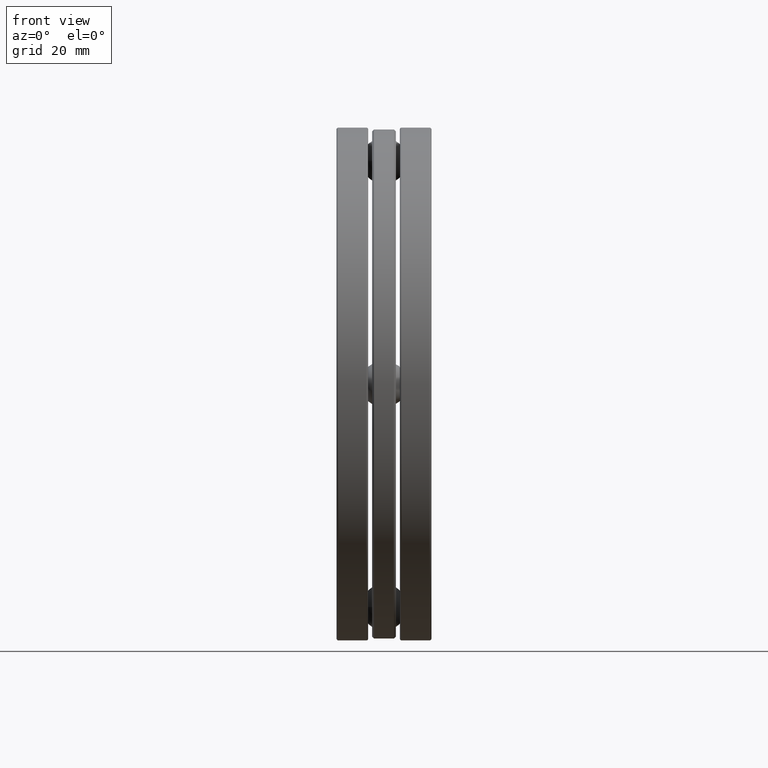
[diagram: clean part render]
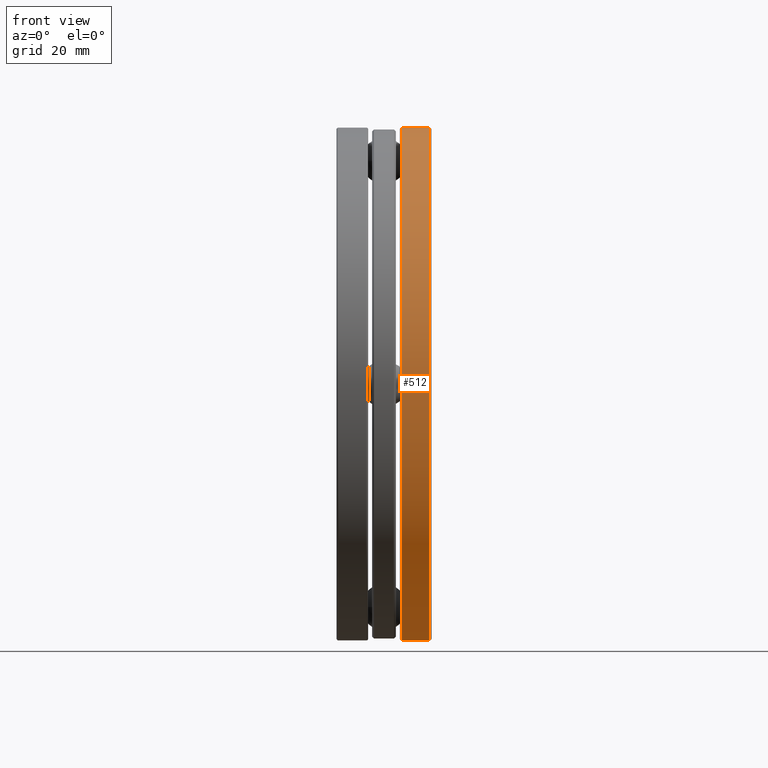
[diagram: same view with one face highlighted and labeled with its STEP entity id]
A machine part, front view. The second image highlights one B-rep face of the part: STEP entity #512.
In plain terms, the highlighted cylindrical surface (bore or boss wall) has radius 67.5005 mm, axis along (-1, -0, -0).
Its self-contained STEP definition (entity closure, byte-faithful):
#13 = DIRECTION ( 'NONE',  ( -1.000000000000000000, -0.0000000000000000000, -0.0000000000000000000 ) ) ;
#21 = FACE_OUTER_BOUND ( 'NONE', #704, .T. ) ;
#32 = EDGE_CURVE ( 'NONE', #455, #455, #544, .T. ) ;
#36 = DIRECTION ( 'NONE',  ( -1.000000000000000000, -0.0000000000000000000, -0.0000000000000000000 ) ) ;
#44 = CARTESIAN_POINT ( 'NONE',  ( 0.0000000000000000000, 0.0000000000000000000, 0.0000000000000000000 ) ) ;
#54 = EDGE_CURVE ( 'NONE', #539, #539, #114, .T. ) ;
#104 = CARTESIAN_POINT ( 'NONE',  ( 0.1840032800000006300, 0.0000000000000000000, 0.0000000000000000000 ) ) ;
#114 = CIRCLE ( 'NONE', #398, 2.657500000000000600 ) ;
#314 = AXIS2_PLACEMENT_3D ( 'NONE', #104, #36, #746 ) ;
#341 = CARTESIAN_POINT ( 'NONE',  ( 0.4720000000000008100, 0.0000000000000000000, 0.0000000000000000000 ) ) ;
#385 = CYLINDRICAL_SURFACE ( 'NONE', #780, 2.657500000000000600 ) ;
#398 = AXIS2_PLACEMENT_3D ( 'NONE', #341, #13, #553 ) ;
#455 = VERTEX_POINT ( 'NONE', #775 ) ;
#458 = EDGE_LOOP ( 'NONE', ( #600 ) ) ;
#482 = ORIENTED_EDGE ( 'NONE', *, *, #54, .T. ) ;
#512 = ADVANCED_FACE ( 'NONE', ( #781, #21 ), #385, .T. ) ;
#539 = VERTEX_POINT ( 'NONE', #708 ) ;
#544 = CIRCLE ( 'NONE', #314, 2.657500000000000600 ) ;
#553 = DIRECTION ( 'NONE',  ( 0.0000000000000000000, 0.0000000000000000000, 1.000000000000000000 ) ) ;
#600 = ORIENTED_EDGE ( 'NONE', *, *, #32, .F. ) ;
#675 = DIRECTION ( 'NONE',  ( 0.0000000000000000000, 0.0000000000000000000, 1.000000000000000000 ) ) ;
#704 = EDGE_LOOP ( 'NONE', ( #482 ) ) ;
#708 = CARTESIAN_POINT ( 'NONE',  ( 0.4720000000000008100, 0.0000000000000000000, 2.657500000000000600 ) ) ;
#746 = DIRECTION ( 'NONE',  ( 0.0000000000000000000, 0.0000000000000000000, 1.000000000000000000 ) ) ;
#775 = CARTESIAN_POINT ( 'NONE',  ( 0.1840032800000006300, 0.0000000000000000000, 2.657500000000000600 ) ) ;
#780 = AXIS2_PLACEMENT_3D ( 'NONE', #44, #795, #675 ) ;
#781 = FACE_OUTER_BOUND ( 'NONE', #458, .T. ) ;
#795 = DIRECTION ( 'NONE',  ( -1.000000000000000000, -0.0000000000000000000, -0.0000000000000000000 ) ) ;